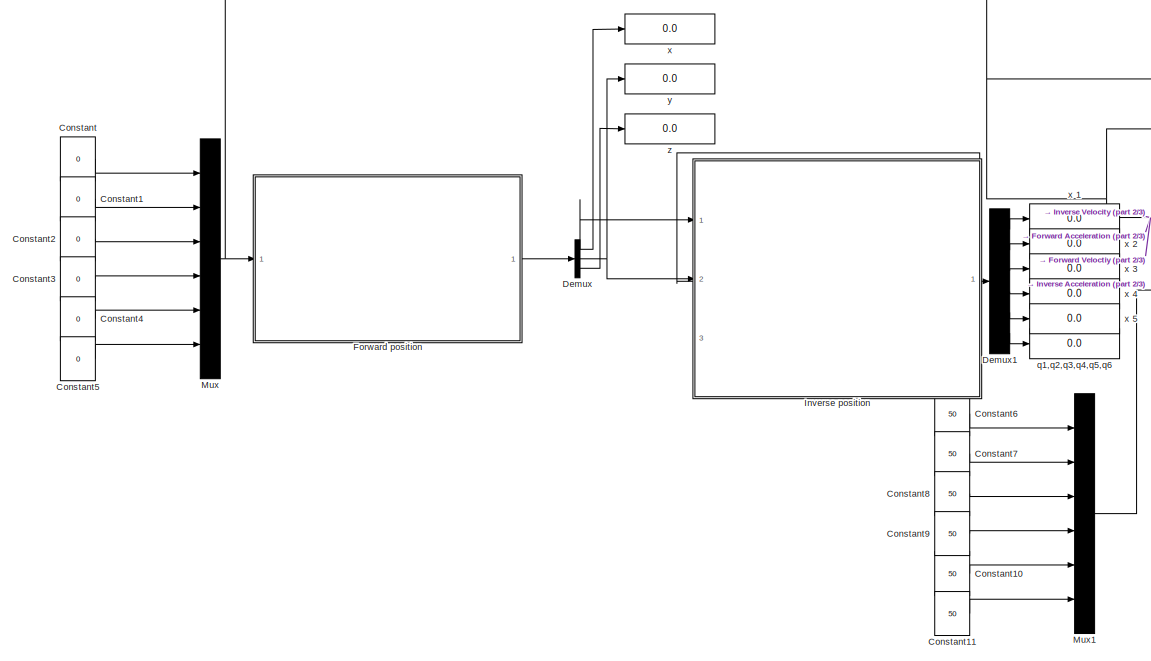
[diagram: root canvas - part 1/3, left side, full height]
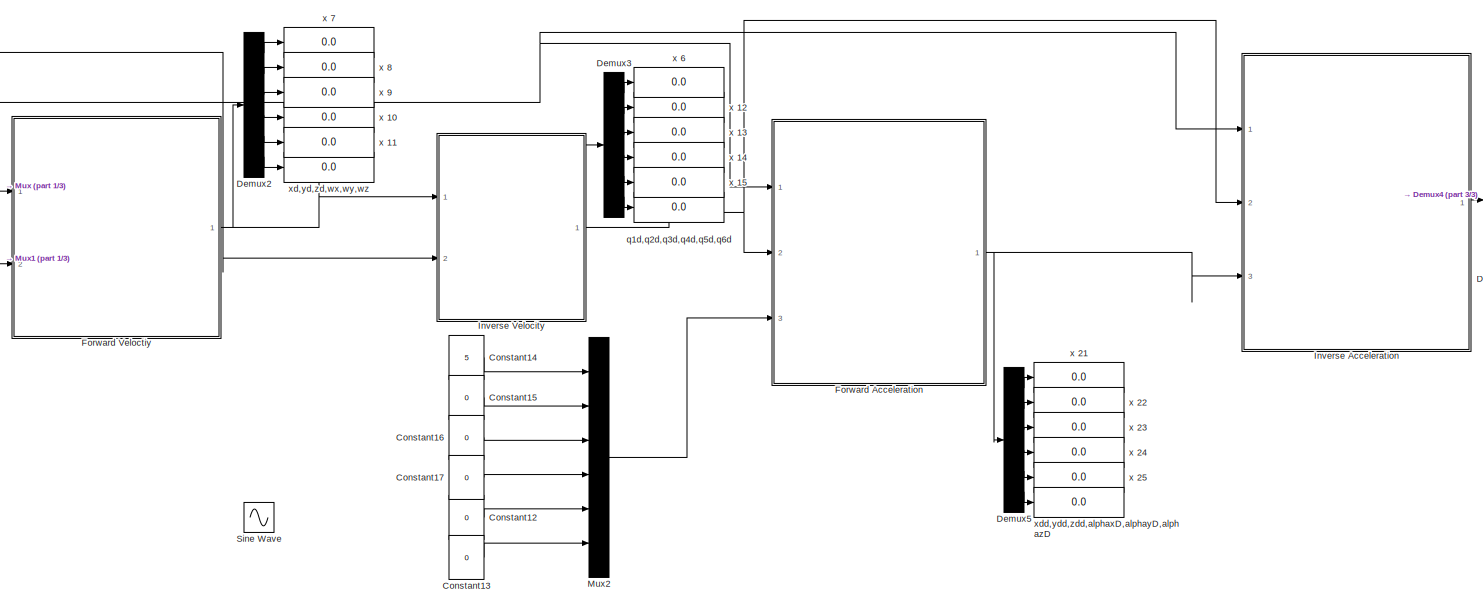
[diagram: root canvas - part 2/3, right side, full height]
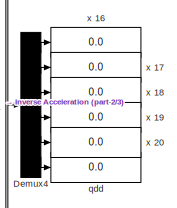
[diagram: root canvas - part 3/3, middle right region]
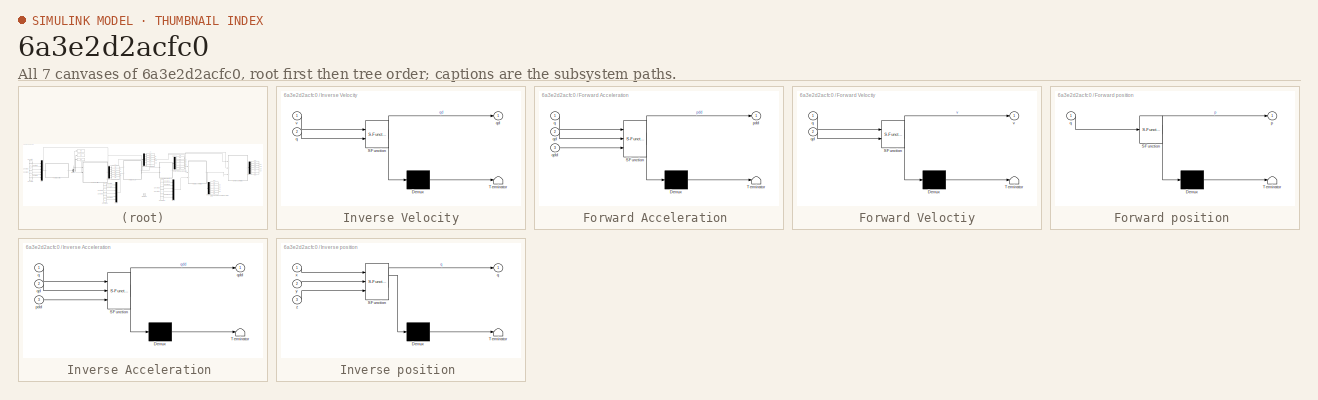
[diagram: thumbnail index - all 7 canvases of the model, root first then tree order]
MODEL slx_6a3e2d2acfc0
KIND model
CONFIG AbsTol = auto
CONFIG EnableMultiTasking = off
CONFIG FixedStep = auto
CONFIG MaxStep = auto
CONFIG MinStep = auto
CONFIG RelTol = 1e-3
CONFIG SampleTimeConstraint = Unconstrained
CONFIG Solver = VariableStepAuto
CONFIG SolverName = VariableStepAuto
CONFIG StartTime = 0.0
CONFIG StopTime = 10
BLOCK [SubSystem]  Inverse Velocity 
  ErrorFcn = Stateflow.Translate.translate
  PermitHierarchicalResolution = ExplicitOnly
  Ports = [2, 1]
  RequestExecContextInheritance = off
  SFBlockType = MATLAB Function
  TreatAsAtomicUnit = on
BLOCK [Demux]  Inverse Velocity / Demux 
  Outputs = 1
  Ports = [1, 1]
BLOCK [S-Function]  Inverse Velocity / SFunction 
  EnableBusSupport = on
  FunctionName = sf_sfun
  PortCounts = [2 2]
  Ports = [2, 2]
  SFcnIsStateOwnerBlock = off
  SFunctionDeploymentMode = off
  Tag = Stateflow S-Function 4
BLOCK [Terminator]  Inverse Velocity / Terminator 
BLOCK [Inport]  Inverse Velocity /q
  IconDisplay = Port number
  Port = 2
BLOCK [Outport]  Inverse Velocity /qd
  IconDisplay = Port number
BLOCK [Inport]  Inverse Velocity /v
  IconDisplay = Port number
BLOCK [Display]  xd,yd,zd,wx,wy,wz 
  Decimation = 1
  Ports = [1]
BLOCK [Constant] Constant
  Value = 0
BLOCK [Constant] Constant1
  Value = 0
BLOCK [Constant] Constant10
  Value = 50
BLOCK [Constant] Constant11
  Value = 50
BLOCK [Constant] Constant12
  Value = 0
BLOCK [Constant] Constant13
  Value = 0
BLOCK [Constant] Constant14
  Value = 5
BLOCK [Constant] Constant15
  Value = 0
BLOCK [Constant] Constant16
  Value = 0
BLOCK [Constant] Constant17
  Value = 0
BLOCK [Constant] Constant2
  Value = 0
BLOCK [Constant] Constant3
  Value = 0
BLOCK [Constant] Constant4
  Value = 0
BLOCK [Constant] Constant5
  Value = 0
BLOCK [Constant] Constant6
  Value = 50
BLOCK [Constant] Constant7
  Value = 50
BLOCK [Constant] Constant8
  Value = 50
BLOCK [Constant] Constant9
  Value = 50
BLOCK [Demux] Demux
  DisplayOption = bar
  Outputs = 3
  Ports = [1, 3]
BLOCK [Demux] Demux1
  DisplayOption = bar
  Outputs = 6
  Ports = [1, 6]
BLOCK [Demux] Demux2
  DisplayOption = bar
  Outputs = 6
  Ports = [1, 6]
BLOCK [Demux] Demux3
  DisplayOption = bar
  Outputs = 6
  Ports = [1, 6]
BLOCK [Demux] Demux4
  DisplayOption = bar
  Outputs = 6
  Ports = [1, 6]
BLOCK [Demux] Demux5
  DisplayOption = bar
  Outputs = 6
  Ports = [1, 6]
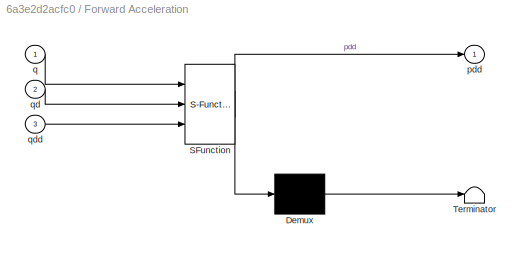
BLOCK [SubSystem] Forward Acceleration 
  ErrorFcn = Stateflow.Translate.translate
  PermitHierarchicalResolution = ExplicitOnly
  Ports = [3, 1]
  RequestExecContextInheritance = off
  SFBlockType = MATLAB Function
  TreatAsAtomicUnit = on
BLOCK [Demux] Forward Acceleration / Demux 
  Outputs = 1
  Ports = [1, 1]
BLOCK [S-Function] Forward Acceleration / SFunction 
  EnableBusSupport = on
  FunctionName = sf_sfun
  PortCounts = [3 2]
  Ports = [3, 2]
  SFcnIsStateOwnerBlock = off
  SFunctionDeploymentMode = off
  Tag = Stateflow S-Function 5
BLOCK [Terminator] Forward Acceleration / Terminator 
BLOCK [Outport] Forward Acceleration /pdd
  IconDisplay = Port number
BLOCK [Inport] Forward Acceleration /q
  IconDisplay = Port number
BLOCK [Inport] Forward Acceleration /qd
  IconDisplay = Port number
  Port = 2
BLOCK [Inport] Forward Acceleration /qdd
  IconDisplay = Port number
  Port = 3
BLOCK [SubSystem] Forward Veloctiy
  ErrorFcn = Stateflow.Translate.translate
  PermitHierarchicalResolution = ExplicitOnly
  Ports = [2, 1]
  RequestExecContextInheritance = off
  SFBlockType = MATLAB Function
  TreatAsAtomicUnit = on
BLOCK [Demux] Forward Veloctiy/ Demux 
  Outputs = 1
  Ports = [1, 1]
BLOCK [S-Function] Forward Veloctiy/ SFunction 
  EnableBusSupport = on
  FunctionName = sf_sfun
  PortCounts = [2 2]
  Ports = [2, 2]
  SFcnIsStateOwnerBlock = off
  SFunctionDeploymentMode = off
  Tag = Stateflow S-Function 3
BLOCK [Terminator] Forward Veloctiy/ Terminator 
BLOCK [Inport] Forward Veloctiy/q
  IconDisplay = Port number
BLOCK [Inport] Forward Veloctiy/qd
  IconDisplay = Port number
  Port = 2
BLOCK [Outport] Forward Veloctiy/v
  IconDisplay = Port number
BLOCK [SubSystem] Forward position 
  ErrorFcn = Stateflow.Translate.translate
  PermitHierarchicalResolution = ExplicitOnly
  Ports = [1, 1]
  RequestExecContextInheritance = off
  SFBlockType = MATLAB Function
  TreatAsAtomicUnit = on
BLOCK [Demux] Forward position / Demux 
  Outputs = 1
  Ports = [1, 1]
BLOCK [S-Function] Forward position / SFunction 
  EnableBusSupport = on
  FunctionName = sf_sfun
  PortCounts = [1 2]
  Ports = [1, 2]
  SFcnIsStateOwnerBlock = off
  SFunctionDeploymentMode = off
  Tag = Stateflow S-Function 2
BLOCK [Terminator] Forward position / Terminator 
BLOCK [Outport] Forward position /p
  IconDisplay = Port number
  VectorParamsAs1DForOutWhenUnconnected = off
BLOCK [Inport] Forward position /q
  IconDisplay = Port number
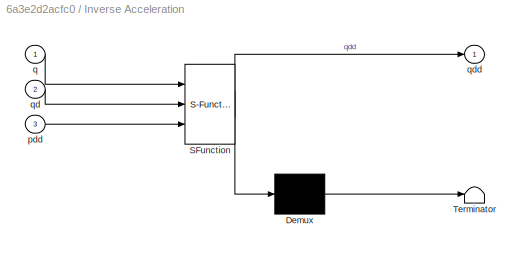
BLOCK [SubSystem] Inverse Acceleration 
  ErrorFcn = Stateflow.Translate.translate
  PermitHierarchicalResolution = ExplicitOnly
  Ports = [3, 1]
  RequestExecContextInheritance = off
  SFBlockType = MATLAB Function
  TreatAsAtomicUnit = on
BLOCK [Demux] Inverse Acceleration / Demux 
  Outputs = 1
  Ports = [1, 1]
BLOCK [S-Function] Inverse Acceleration / SFunction 
  EnableBusSupport = on
  FunctionName = sf_sfun
  PortCounts = [3 2]
  Ports = [3, 2]
  SFcnIsStateOwnerBlock = off
  SFunctionDeploymentMode = off
  Tag = Stateflow S-Function 6
BLOCK [Terminator] Inverse Acceleration / Terminator 
BLOCK [Inport] Inverse Acceleration /pdd
  IconDisplay = Port number
  Port = 3
BLOCK [Inport] Inverse Acceleration /q
  IconDisplay = Port number
BLOCK [Inport] Inverse Acceleration /qd
  IconDisplay = Port number
  Port = 2
BLOCK [Outport] Inverse Acceleration /qdd
  IconDisplay = Port number
BLOCK [SubSystem] Inverse position 
  ErrorFcn = Stateflow.Translate.translate
  PermitHierarchicalResolution = ExplicitOnly
  Ports = [3, 1]
  RequestExecContextInheritance = off
  SFBlockType = MATLAB Function
  TreatAsAtomicUnit = on
BLOCK [Demux] Inverse position / Demux 
  Outputs = 1
  Ports = [1, 1]
BLOCK [S-Function] Inverse position / SFunction 
  EnableBusSupport = on
  FunctionName = sf_sfun
  PortCounts = [3 2]
  Ports = [3, 2]
  SFcnIsStateOwnerBlock = off
  SFunctionDeploymentMode = off
  Tag = Stateflow S-Function 1
BLOCK [Terminator] Inverse position / Terminator 
BLOCK [Outport] Inverse position /q
  IconDisplay = Port number
  VectorParamsAs1DForOutWhenUnconnected = off
BLOCK [Inport] Inverse position /x
  IconDisplay = Port number
BLOCK [Inport] Inverse position /y
  IconDisplay = Port number
  Port = 2
BLOCK [Inport] Inverse position /z
  IconDisplay = Port number
  Port = 3
BLOCK [Mux] Mux
  DisplayOption = bar
  Inputs = 6
  Ports = [6, 1]
BLOCK [Mux] Mux1
  DisplayOption = bar
  Inputs = 6
  Ports = [6, 1]
BLOCK [Mux] Mux2
  DisplayOption = bar
  Inputs = 6
  Ports = [6, 1]
BLOCK [Sin] Sine Wave
  Ports = [0, 1]
  SampleTime = 0
BLOCK [Display] q1,q2,q3,q4,q5,q6 
  Decimation = 1
  Ports = [1]
BLOCK [Display] q1d,q2d,q3d,q4d,q5d,q6d 
  Decimation = 1
  Ports = [1]
BLOCK [Display] qdd 
  Decimation = 1
  Ports = [1]
BLOCK [Display] x 
  Decimation = 1
  Ports = [1]
BLOCK [Display] x 1
  Decimation = 1
  Ports = [1]
BLOCK [Display] x 10
  Decimation = 1
  Ports = [1]
BLOCK [Display] x 11
  Decimation = 1
  Ports = [1]
BLOCK [Display] x 12
  Decimation = 1
  Ports = [1]
BLOCK [Display] x 13
  Decimation = 1
  Ports = [1]
BLOCK [Display] x 14
  Decimation = 1
  Ports = [1]
BLOCK [Display] x 15
  Decimation = 1
  Ports = [1]
BLOCK [Display] x 16
  Decimation = 1
  Ports = [1]
BLOCK [Display] x 17
  Decimation = 1
  Ports = [1]
BLOCK [Display] x 18
  Decimation = 1
  Ports = [1]
BLOCK [Display] x 19
  Decimation = 1
  Ports = [1]
BLOCK [Display] x 2
  Decimation = 1
  Ports = [1]
BLOCK [Display] x 20
  Decimation = 1
  Ports = [1]
BLOCK [Display] x 21
  Decimation = 1
  Ports = [1]
BLOCK [Display] x 22
  Decimation = 1
  Ports = [1]
BLOCK [Display] x 23
  Decimation = 1
  Ports = [1]
BLOCK [Display] x 24
  Decimation = 1
  Ports = [1]
BLOCK [Display] x 25
  Decimation = 1
  Ports = [1]
BLOCK [Display] x 3
  Decimation = 1
  Ports = [1]
BLOCK [Display] x 4
  Decimation = 1
  Ports = [1]
BLOCK [Display] x 5
  Decimation = 1
  Ports = [1]
BLOCK [Display] x 6
  Decimation = 1
  Ports = [1]
BLOCK [Display] x 7
  Decimation = 1
  Ports = [1]
BLOCK [Display] x 8
  Decimation = 1
  Ports = [1]
BLOCK [Display] x 9
  Decimation = 1
  Ports = [1]
BLOCK [Display] xdd,ydd,zdd,alphaxD,alphayD,alphazD 
  Decimation = 1
  Ports = [1]
BLOCK [Display] y
  Decimation = 1
  Ports = [1]
BLOCK [Display] z
  Decimation = 1
  Ports = [1]
NET  Inverse Velocity :1 -> Demux3:1, Forward Acceleration :2, Inverse Acceleration :2
LINE Constant10:1 -> Mux1:5
LINE Constant11:1 -> Mux1:6
LINE Constant12:1 -> Mux2:5
LINE Constant13:1 -> Mux2:6
LINE Constant14:1 -> Mux2:1
LINE Constant15:1 -> Mux2:2
LINE Constant16:1 -> Mux2:3
LINE Constant17:1 -> Mux2:4
LINE Constant1:1 -> Mux:2
LINE Constant2:1 -> Mux:3
LINE Constant3:1 -> Mux:4
LINE Constant4:1 -> Mux:5
LINE Constant5:1 -> Mux:6
LINE Constant6:1 -> Mux1:1
LINE Constant7:1 -> Mux1:2
LINE Constant8:1 -> Mux1:3
LINE Constant9:1 -> Mux1:4
LINE Constant:1 -> Mux:1
LINE Demux1:1 -> x 1:1
LINE Demux1:2 -> x 2:1
LINE Demux1:3 -> x 3:1
LINE Demux1:4 -> x 4:1
LINE Demux1:5 -> x 5:1
LINE Demux1:6 -> q1,q2,q3,q4,q5,q6 :1
LINE Demux2:1 -> x 7:1
LINE Demux2:2 -> x 8:1
LINE Demux2:3 -> x 9:1
LINE Demux2:4 -> x 10:1
LINE Demux2:5 -> x 11:1
LINE Demux2:6 ->  xd,yd,zd,wx,wy,wz :1
LINE Demux3:1 -> x 6:1
LINE Demux3:2 -> x 12:1
LINE Demux3:3 -> x 13:1
LINE Demux3:4 -> x 14:1
LINE Demux3:5 -> x 15:1
LINE Demux3:6 -> q1d,q2d,q3d,q4d,q5d,q6d :1
LINE Demux4:1 -> x 16:1
LINE Demux4:2 -> x 17:1
LINE Demux4:3 -> x 18:1
LINE Demux4:4 -> x 19:1
LINE Demux4:5 -> x 20:1
LINE Demux4:6 -> qdd :1
LINE Demux5:1 -> x 21:1
LINE Demux5:2 -> x 22:1
LINE Demux5:3 -> x 23:1
LINE Demux5:4 -> x 24:1
LINE Demux5:5 -> x 25:1
LINE Demux5:6 -> xdd,ydd,zdd,alphaxD,alphayD,alphazD :1
NET Demux:1 -> Inverse position :1, x :1
NET Demux:2 -> Inverse position :2, y:1
LINE Demux:3 -> z:1
NET Forward Acceleration :1 -> Demux5:1, Inverse Acceleration :3
NET Forward Veloctiy:1 ->  Inverse Velocity :1, Demux2:1
LINE Forward position :1 -> Demux:1
LINE Inverse Acceleration :1 -> Demux4:1
LINE Inverse position :1 -> Demux1:1
LINE Mux1:1 -> Forward Veloctiy:2
LINE Mux2:1 -> Forward Acceleration :3
NET Mux:1 ->  Inverse Velocity :2, Forward Acceleration :1, Forward Veloctiy:1, Forward position :1, Inverse Acceleration :1
note: NET lines group one-source signal fan-out (src -> all destinations, sorted); 1:1 wires keep LINE
CHART Inverse position 
 states=1 transitions=1
  STATE_LABEL 'eML_blk_kernel()'
  STATE_LABEL 'SCRIPT:\nfunction q   = fcn(x, y, z)\n\nqnew=[0;0;0;0;0;0];\nqold=[50;50;50;50;50;50];\n\ni=100;\ndog=true;\n\nwhile (i>0 && dog)\n    q1=qold(1,1);\n    q2=qold(2,1);\n    q3=qold(3,1);\n    q4=qold(4,1);\n    q5=qold(5,1);\n    q6=qold(6,1);\n    \n    F= [ 10*cos((pi*(q1 - 90))/180)*sin((pi*(q2 - 90))/180) - 10*sin((pi*(q5 + 90))/180)*(sin((pi*(q1 - 90))/180)*sin((pi*(q4 + 90))/180) - cos((pi*(q1 - 90))/180)*co...<+3608ch>'
CHART Forward position
 states=1 transitions=1
  STATE_LABEL 'eML_blk_kernel()'
  STATE_LABEL 'SCRIPT:\nfunction p  = fcn(q)\nq1= q(1);\nq2= q(2);\nq3= q(3);\nq4= q(4);\nq5= q(5);\nq6= q(6);\nL1=10;\nL2=10;\nL3=10;\nL4=10;\npp= [ sin((pi*q6)/180)*(cos((pi*(q4 + 90))/180)*sin((pi*(q1 - 90))/180) + cos((pi*(q1 - 90))/180)*cos((pi*(q2 - 90))/180)*sin((pi*(q4 + 90))/180)) - cos((pi*q6)/180)*(cos((pi*(q5 + 90))/180)*(sin((pi*(q1 - 90))/180)*sin((pi*(q4 + 90))/180) - cos((pi*(q1 - 90))/180)*cos((pi*(q2 - 90)...<+3608ch>'
CHART Forward Veloctiy states=1 transitions=1
  STATE_LABEL 'eML_blk_kernel()'
  STATE_LABEL 'SCRIPT:\nfunction v   = fcn(q,qd)\nq1= q(1);\nq2= q(2);\nq3= q(3);\nq4= q(4);\nq5= q(5);\nq6= q(6);\nq1d=qd(1);\nq2d=qd(2);\nq3d=qd(3);\nq4d=qd(4);\nq5d=qd(5);\nq6d=qd(6);\nL1=10;\nL2=10;\nL3=10;\nL4=10;\n\nA0T1= [ cos(0.0175*q1 - 1.5708),  0, -sin(0.0175*q1 - 1.5708),  0;...\n sin(0.0175*q1 - 1.5708),  0,  cos(0.0175*q1 - 1.5708),  0;...\n                       0, -1,                        0, L1];\n                  ...<+3608ch>'
CHART  Inverse Velocity
 states=1 transitions=1
  STATE_LABEL 'eML_blk_kernel()'
  STATE_LABEL 'SCRIPT:\nfunction qd  = fcn(v,q)\nxd=v(1);\nyd=v(2);\nzd=v(3);\nwx=v(4);\nwy=v(5);\nwz=v(6);\nq1= q(1);\nq2= q(2);\nq3= q(3);\nq4= q(4);\nq5= q(5);\nq6= q(6);\nL1=10;\nL2=10;\nL3=10;\nL4=10;\n\nA0T1= [ cos(0.0175*q1 - 1.5708),  0, -sin(0.0175*q1 - 1.5708),  0;...\n sin(0.0175*q1 - 1.5708),  0,  cos(0.0175*q1 - 1.5708),  0;...\n                       0, -1,                        0, L1];\n                   \n\n\nA0T2= [ c...<+3608ch>'
CHART Forward Acceleration
 states=1 transitions=1
  STATE_LABEL 'eML_blk_kernel()'
  STATE_LABEL 'SCRIPT:\nfunction pdd    = fcn(q,qd,qdd)\nq1= q(1);\nq2= q(2);\nq3= q(3);\nq4= q(4);\nq5= q(5);\nq6= q(6);\nq1d=qd(1);\nq2d=qd(2);\nq3d=qd(3);\nq4d=qd(4);\nq5d=qd(5);\nq6d=qd(6);\nq1dd= qdd(1);\nq2dd= qdd(2);\nq3dd= qdd(3);\nq4dd= qdd(4);\nq5dd= qdd(5);\nq6dd= qdd(6);\nL1=10;\nL2=10;\nL3=10;\nL4=10;\n\nJdev= [ conj(L4)*(sin(0.0175*conj(q5) + 1.5708)*(0.0175*conj(q1d)*sin(0.0175*conj(q1) - 1.5708)*sin(0.0175*conj(q4) + 1.5...<+3608ch>'
CHART Inverse Acceleration
 states=1 transitions=1
  STATE_LABEL 'eML_blk_kernel()'
  STATE_LABEL 'SCRIPT:\nfunction qdd    = fcn(q,qd,pdd)\nq1= q(1);\nq2= q(2);\nq3= q(3);\nq4= q(4);\nq5= q(5);\nq6= q(6);\nq1d=qd(1);\nq2d=qd(2);\nq3d=qd(3);\nq4d=qd(4);\nq5d=qd(5);\nq6d=qd(6);\nxdd= pdd(1);\nydd= pdd(2);\nzdd= pdd(3);\nwxdd= pdd(4);\nwydd= pdd(5);\nwzdd= pdd(6);\n\nL1=10;\nL2=10;\nL3=10;\nL4=10;\n\nJdev= [ conj(L4)*(sin(0.0175*conj(q5) + 1.5708)*(0.0175*conj(q1d)*sin(0.0175*conj(q1) - 1.5708)*sin(0.0175*conj(q4) + 1.570...<+3608ch>'
